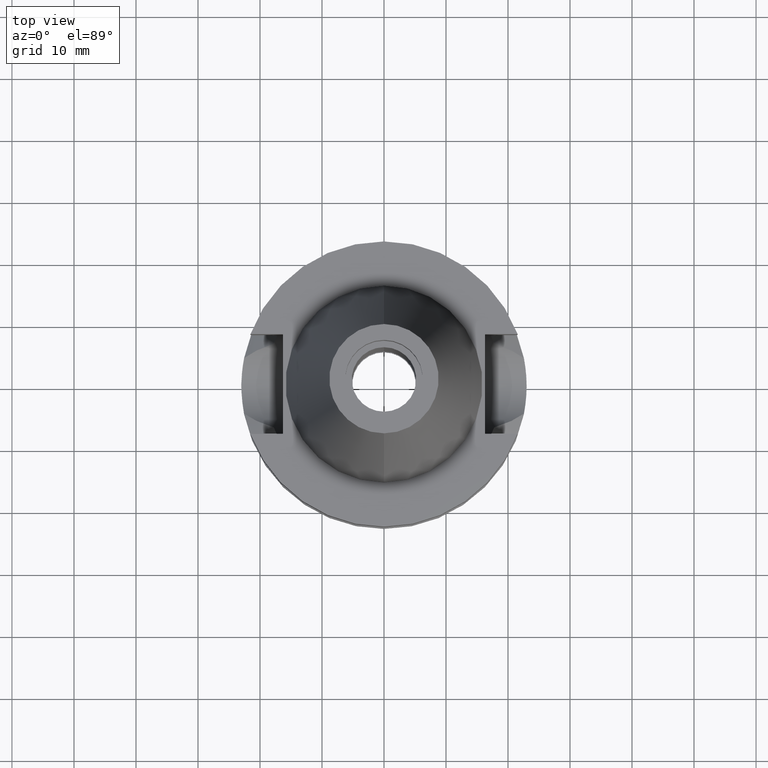
[diagram: clean part render]
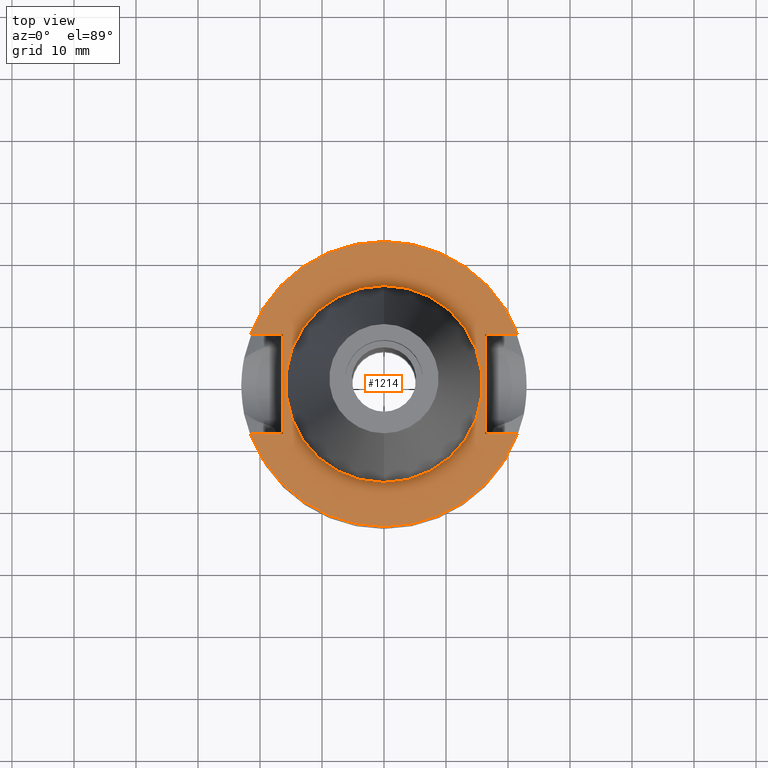
[diagram: same view with one face highlighted and labeled with its STEP entity id]
A machine part, top view. The second image highlights one B-rep face of the part: STEP entity #1214.
In plain terms, the highlighted planar face has unit normal (0, 0, -1).
Its self-contained STEP definition (entity closure, byte-faithful):
#12 = EDGE_CURVE ( 'NONE', #1213, #1079, #1374, .T. ) ;
#15 = DIRECTION ( 'NONE',  ( 0.0000000000000000000, 0.0000000000000000000, 1.000000000000000000 ) ) ;
#42 = EDGE_CURVE ( 'NONE', #1522, #2089, #857, .T. ) ;
#49 = VECTOR ( 'NONE', #76, 1000.000000000000000 ) ;
#76 = DIRECTION ( 'NONE',  ( 1.000000000000000000, 9.313164748262000573E-14, 0.0000000000000000000 ) ) ;
#91 = VECTOR ( 'NONE', #124, 1000.000000000000000 ) ;
#124 = DIRECTION ( 'NONE',  ( -1.000000000000000000, -9.380896855521999773E-14, 0.0000000000000000000 ) ) ;
#159 = CARTESIAN_POINT ( 'NONE',  ( 16.29999999999999716, 8.050000000000000711, -1.000000000000000000 ) ) ;
#203 = DIRECTION ( 'NONE',  ( 0.0000000000000000000, 0.0000000000000000000, 1.000000000000000000 ) ) ;
#262 = AXIS2_PLACEMENT_3D ( 'NONE', #302, #2873, #292 ) ;
#292 = DIRECTION ( 'NONE',  ( -0.9367496997597649644, 0.3499999999999864886, 0.0000000000000000000 ) ) ;
#300 = CARTESIAN_POINT ( 'NONE',  ( 21.54524309446999908, -8.050000000000000711, -1.000000000000000000 ) ) ;
#302 = CARTESIAN_POINT ( 'NONE',  ( 0.0000000000000000000, 0.0000000000000000000, -1.000000000000000000 ) ) ;
#324 = ORIENTED_EDGE ( 'NONE', *, *, #1503, .F. ) ;
#339 = VERTEX_POINT ( 'NONE', #3045 ) ;
#477 = CARTESIAN_POINT ( 'NONE',  ( 0.0000000000000000000, 0.0000000000000000000, -1.000000000000000000 ) ) ;
#506 = CIRCLE ( 'NONE', #1673, 15.87500000000000000 ) ;
#685 = DIRECTION ( 'NONE',  ( 0.0000000000000000000, -1.000000000000000000, 0.0000000000000000000 ) ) ;
#757 = LINE ( 'NONE', #2605, #2378 ) ;
#783 = CARTESIAN_POINT ( 'NONE',  ( -21.54524309446999908, 8.050000000000000711, -1.000000000000000000 ) ) ;
#808 = VERTEX_POINT ( 'NONE', #1906 ) ;
#857 = CIRCLE ( 'NONE', #1165, 23.00000000000000000 ) ;
#871 = ORIENTED_EDGE ( 'NONE', *, *, #2855, .F. ) ;
#928 = CARTESIAN_POINT ( 'NONE',  ( 16.29999999999999716, -8.050000000000000711, -1.000000000000000000 ) ) ;
#982 = DIRECTION ( 'NONE',  ( 1.000000000000000000, -9.347030801892000173E-14, 0.0000000000000000000 ) ) ;
#1005 = DIRECTION ( 'NONE',  ( 0.0000000000000000000, 1.000000000000000000, 0.0000000000000000000 ) ) ;
#1009 = VERTEX_POINT ( 'NONE', #1065 ) ;
#1062 = LINE ( 'NONE', #2665, #49 ) ;
#1065 = CARTESIAN_POINT ( 'NONE',  ( 0.0000000000000000000, 15.87500000000000000, -1.000000000000000000 ) ) ;
#1079 = VERTEX_POINT ( 'NONE', #928 ) ;
#1082 = AXIS2_PLACEMENT_3D ( 'NONE', #2274, #3004, #685 ) ;
#1165 = AXIS2_PLACEMENT_3D ( 'NONE', #1785, #1764, #1547 ) ;
#1213 = VERTEX_POINT ( 'NONE', #1381 ) ;
#1214 = ADVANCED_FACE ( 'NONE', ( #1826, #1604 ), #2315, .F. ) ;
#1281 = ORIENTED_EDGE ( 'NONE', *, *, #42, .F. ) ;
#1304 = ORIENTED_EDGE ( 'NONE', *, *, #2529, .T. ) ;
#1341 = DIRECTION ( 'NONE',  ( 0.0000000000000000000, -1.000000000000000000, 0.0000000000000000000 ) ) ;
#1374 = LINE ( 'NONE', #159, #2782 ) ;
#1377 = EDGE_CURVE ( 'NONE', #2472, #339, #1661, .T. ) ;
#1381 = CARTESIAN_POINT ( 'NONE',  ( 16.29999999999999716, 8.050000000000000711, -1.000000000000000000 ) ) ;
#1432 = LINE ( 'NONE', #300, #2829 ) ;
#1463 = CARTESIAN_POINT ( 'NONE',  ( -16.29999999999999716, -8.050000000000000711, -1.000000000000000000 ) ) ;
#1478 = EDGE_CURVE ( 'NONE', #1642, #339, #757, .T. ) ;
#1503 = EDGE_CURVE ( 'NONE', #1009, #808, #506, .T. ) ;
#1522 = VERTEX_POINT ( 'NONE', #1952 ) ;
#1547 = DIRECTION ( 'NONE',  ( 0.0000000000000000000, -1.000000000000000000, 0.0000000000000000000 ) ) ;
#1577 = VECTOR ( 'NONE', #1005, 1000.000000000000000 ) ;
#1600 = EDGE_CURVE ( 'NONE', #2319, #1213, #1706, .T. ) ;
#1604 = FACE_BOUND ( 'NONE', #1759, .T. ) ;
#1629 = EDGE_CURVE ( 'NONE', #2089, #2472, #1062, .T. ) ;
#1642 = VERTEX_POINT ( 'NONE', #783 ) ;
#1661 = LINE ( 'NONE', #1463, #1577 ) ;
#1673 = AXIS2_PLACEMENT_3D ( 'NONE', #2154, #15, #2626 ) ;
#1706 = LINE ( 'NONE', #2209, #91 ) ;
#1759 = EDGE_LOOP ( 'NONE', ( #324, #871 ) ) ;
#1764 = DIRECTION ( 'NONE',  ( 0.0000000000000000000, 0.0000000000000000000, -1.000000000000000000 ) ) ;
#1785 = CARTESIAN_POINT ( 'NONE',  ( 0.0000000000000000000, 0.0000000000000000000, -1.000000000000000000 ) ) ;
#1826 = FACE_OUTER_BOUND ( 'NONE', #2105, .T. ) ;
#1889 = AXIS2_PLACEMENT_3D ( 'NONE', #477, #203, #2756 ) ;
#1902 = CARTESIAN_POINT ( 'NONE',  ( -16.29999999999999716, -8.050000000000000711, -1.000000000000000000 ) ) ;
#1906 = CARTESIAN_POINT ( 'NONE',  ( 0.0000000000000000000, -15.87500000000000000, -1.000000000000000000 ) ) ;
#1952 = CARTESIAN_POINT ( 'NONE',  ( 21.54524309446999908, -8.050000000000000711, -1.000000000000000000 ) ) ;
#2003 = EDGE_CURVE ( 'NONE', #1642, #2319, #2726, .T. ) ;
#2031 = ORIENTED_EDGE ( 'NONE', *, *, #1478, .T. ) ;
#2050 = ORIENTED_EDGE ( 'NONE', *, *, #1377, .F. ) ;
#2089 = VERTEX_POINT ( 'NONE', #2439 ) ;
#2102 = ORIENTED_EDGE ( 'NONE', *, *, #12, .F. ) ;
#2105 = EDGE_LOOP ( 'NONE', ( #2354, #1281, #1304, #2102, #2245, #2699, #2031, #2050 ) ) ;
#2154 = CARTESIAN_POINT ( 'NONE',  ( 0.0000000000000000000, 0.0000000000000000000, -1.000000000000000000 ) ) ;
#2209 = CARTESIAN_POINT ( 'NONE',  ( 21.54524309446999908, 8.050000000000000711, -1.000000000000000000 ) ) ;
#2245 = ORIENTED_EDGE ( 'NONE', *, *, #1600, .F. ) ;
#2274 = CARTESIAN_POINT ( 'NONE',  ( 0.0000000000000000000, 0.0000000000000000000, -1.000000000000000000 ) ) ;
#2315 = PLANE ( 'NONE',  #1082 ) ;
#2319 = VERTEX_POINT ( 'NONE', #2777 ) ;
#2354 = ORIENTED_EDGE ( 'NONE', *, *, #1629, .F. ) ;
#2378 = VECTOR ( 'NONE', #982, 1000.000000000000000 ) ;
#2439 = CARTESIAN_POINT ( 'NONE',  ( -21.54524309446999908, -8.050000000000000711, -1.000000000000000000 ) ) ;
#2472 = VERTEX_POINT ( 'NONE', #1902 ) ;
#2529 = EDGE_CURVE ( 'NONE', #1522, #1079, #1432, .T. ) ;
#2605 = CARTESIAN_POINT ( 'NONE',  ( -21.54524309446999908, 8.050000000000000711, -1.000000000000000000 ) ) ;
#2626 = DIRECTION ( 'NONE',  ( 0.0000000000000000000, 1.000000000000000000, 0.0000000000000000000 ) ) ;
#2665 = CARTESIAN_POINT ( 'NONE',  ( -21.54524309446999908, -8.050000000000000711, -1.000000000000000000 ) ) ;
#2699 = ORIENTED_EDGE ( 'NONE', *, *, #2003, .F. ) ;
#2726 = CIRCLE ( 'NONE', #262, 23.00000000000000355 ) ;
#2756 = DIRECTION ( 'NONE',  ( 0.0000000000000000000, -1.000000000000000000, 0.0000000000000000000 ) ) ;
#2777 = CARTESIAN_POINT ( 'NONE',  ( 21.54524309446999908, 8.050000000000000711, -1.000000000000000000 ) ) ;
#2782 = VECTOR ( 'NONE', #1341, 1000.000000000000000 ) ;
#2829 = VECTOR ( 'NONE', #2892, 1000.000000000000000 ) ;
#2840 = CIRCLE ( 'NONE', #1889, 15.87500000000000000 ) ;
#2855 = EDGE_CURVE ( 'NONE', #808, #1009, #2840, .T. ) ;
#2873 = DIRECTION ( 'NONE',  ( 0.0000000000000000000, 0.0000000000000000000, -1.000000000000000000 ) ) ;
#2892 = DIRECTION ( 'NONE',  ( -1.000000000000000000, 9.347030801892000173E-14, 0.0000000000000000000 ) ) ;
#3004 = DIRECTION ( 'NONE',  ( 0.0000000000000000000, 0.0000000000000000000, -1.000000000000000000 ) ) ;
#3045 = CARTESIAN_POINT ( 'NONE',  ( -16.29999999999999716, 8.050000000000000711, -1.000000000000000000 ) ) ;